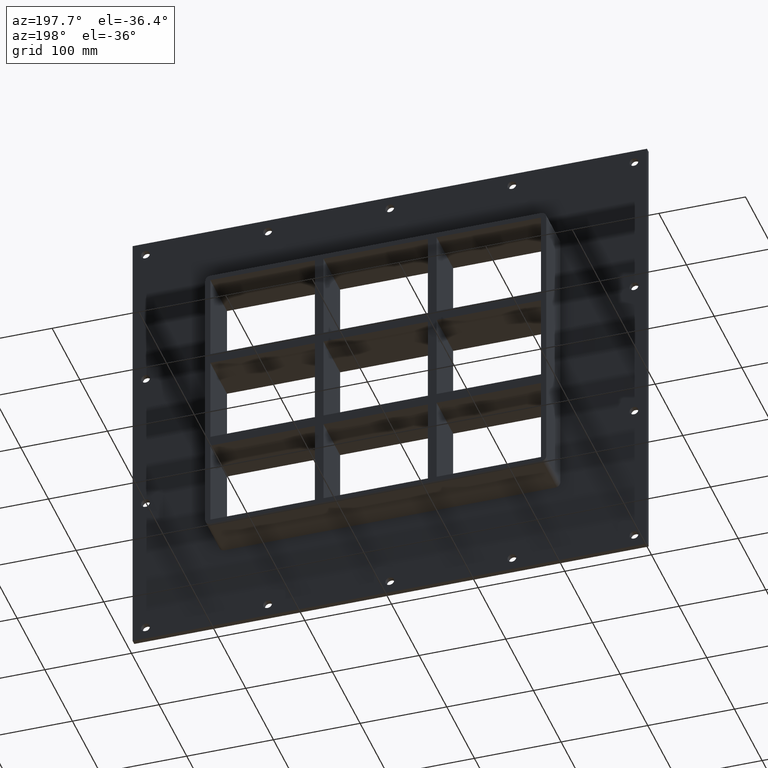
[diagram: clean part render]
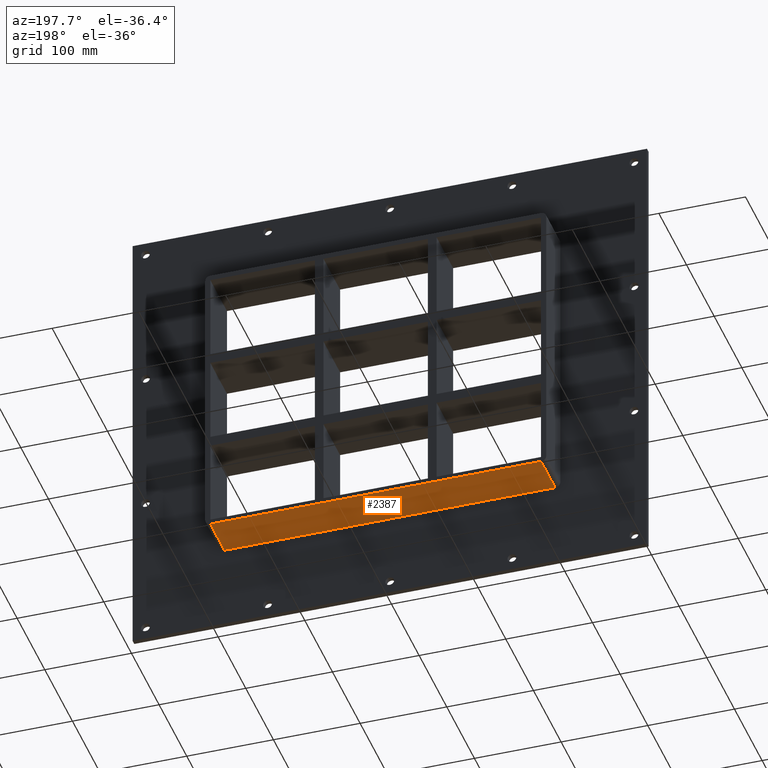
[diagram: same view with one face highlighted and labeled with its STEP entity id]
A machine part, auxiliary view. The second image highlights one B-rep face of the part: STEP entity #2387.
In plain terms, the highlighted planar face has unit normal (0, 0, -1).
Its self-contained STEP definition (entity closure, byte-faithful):
#953=CARTESIAN_POINT('',(190.75000000000003,57.0,-169.50000000000003));
#954=VERTEX_POINT('',#953);
#964=CARTESIAN_POINT('',(-190.75000000000003,57.0,-169.50000000000003));
#965=VERTEX_POINT('',#964);
#966=CARTESIAN_POINT('',(190.75000000000006,57.0,-169.50000000000003));
#967=DIRECTION('',(-1.0,0.0,0.0));
#968=VECTOR('',#967,381.50000000000006);
#969=LINE('',#966,#968);
#970=EDGE_CURVE('',#954,#965,#969,.T.);
#1905=CARTESIAN_POINT('',(-190.75000000000003,6.000000000000001,-169.50000000000003));
#1906=VERTEX_POINT('',#1905);
#1916=CARTESIAN_POINT('',(190.75000000000003,6.000000000000001,-169.50000000000003));
#1917=VERTEX_POINT('',#1916);
#1918=CARTESIAN_POINT('',(190.75000000000003,6.000000000000001,-169.50000000000003));
#1919=DIRECTION('',(-1.0,0.0,0.0));
#1920=VECTOR('',#1919,381.5);
#1921=LINE('',#1918,#1920);
#1922=EDGE_CURVE('',#1917,#1906,#1921,.T.);
#2326=CARTESIAN_POINT('',(190.75000000000003,6.000000000000001,-169.50000000000003));
#2327=DIRECTION('',(0.0,1.0,0.0));
#2328=VECTOR('',#2327,51.0);
#2329=LINE('',#2326,#2328);
#2330=EDGE_CURVE('',#1917,#954,#2329,.T.);
#2371=CARTESIAN_POINT('',(196.75000000000006,0.0,-169.50000000000003));
#2372=DIRECTION('',(0.0,0.0,-1.0));
#2373=DIRECTION('',(-1.0,0.0,0.0));
#2374=AXIS2_PLACEMENT_3D('',#2371,#2372,#2373);
#2375=PLANE('',#2374);
#2376=ORIENTED_EDGE('',*,*,#1922,.T.);
#2377=CARTESIAN_POINT('',(-190.75000000000003,57.0,-169.50000000000003));
#2378=DIRECTION('',(0.0,-1.0,0.0));
#2379=VECTOR('',#2378,51.0);
#2380=LINE('',#2377,#2379);
#2381=EDGE_CURVE('',#965,#1906,#2380,.T.);
#2382=ORIENTED_EDGE('',*,*,#2381,.F.);
#2383=ORIENTED_EDGE('',*,*,#970,.F.);
#2384=ORIENTED_EDGE('',*,*,#2330,.F.);
#2385=EDGE_LOOP('',(#2376,#2382,#2383,#2384));
#2386=FACE_OUTER_BOUND('',#2385,.T.);
#2387=ADVANCED_FACE('',(#2386),#2375,.T.);